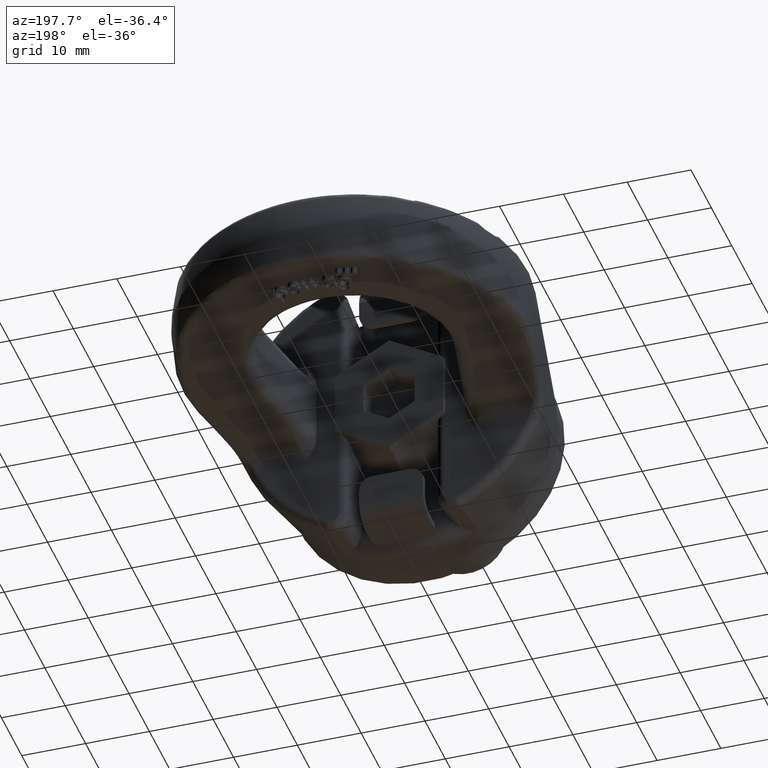
[diagram: clean part render]
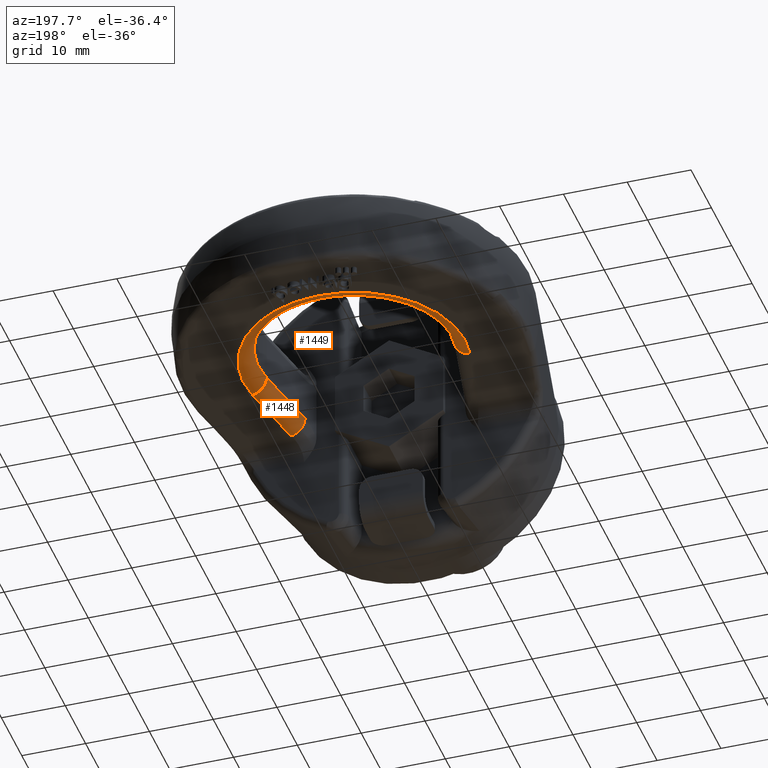
[diagram: same view with one multi-face feature highlighted, each face labeled with its STEP entity id]
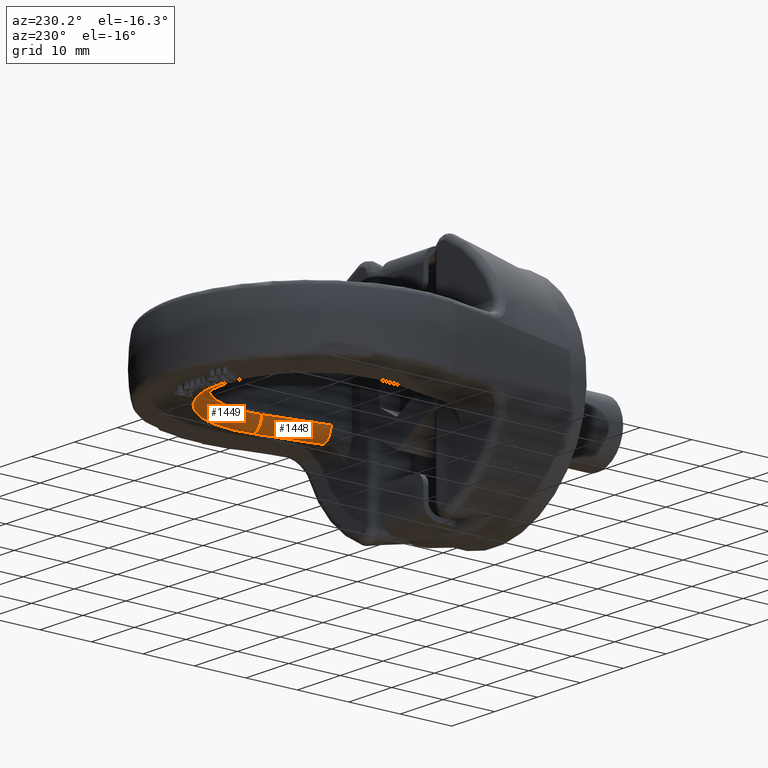
[diagram: same view with one multi-face feature highlighted, each face labeled with its STEP entity id]
A machine part, auxiliary view. The highlighted faces form ONE feature: a constant-radius fillet chain: 2 tangent blend faces with common blend radius 2.4 mm. The faces share edges in the B-rep.
A second angle (auxiliary view) of the same feature is appended — it is thin or edge-on in the first view.
Their STEP definitions:
[1] entity #1448 (Cylinder):
#1072=CYLINDRICAL_SURFACE('',#5282,2.4);
#1216=FACE_OUTER_BOUND('',#1979,.T.);
#1448=ADVANCED_FACE('',(#1216),#1072,.T.);
#1725=CIRCLE('',#5280,2.4);
#1726=CIRCLE('',#5281,2.4);
#1979=EDGE_LOOP('',(#3433,#3434,#3435,#3436));
#2154=LINE('',#6874,#2434);
#2245=LINE('',#8253,#2553);
#2434=VECTOR('',#5526,1.);
#2553=VECTOR('',#5835,1.);
#3433=ORIENTED_EDGE('',*,*,#4658,.F.);
#3434=ORIENTED_EDGE('',*,*,#4405,.F.);
#3435=ORIENTED_EDGE('',*,*,#4659,.T.);
#3436=ORIENTED_EDGE('',*,*,#4607,.F.);
#4003=VERTEX_POINT('',#6856);
#4010=VERTEX_POINT('',#6875);
#4117=VERTEX_POINT('',#8233);
#4124=VERTEX_POINT('',#8252);
#4405=EDGE_CURVE('',#4003,#4010,#2154,.T.);
#4607=EDGE_CURVE('',#4124,#4117,#2245,.T.);
#4658=EDGE_CURVE('',#4010,#4124,#1725,.T.);
#4659=EDGE_CURVE('',#4003,#4117,#1726,.T.);
#5280=AXIS2_PLACEMENT_3D('',#8676,#5915,#5916);
#5281=AXIS2_PLACEMENT_3D('',#8695,#5917,#5918);
#5282=AXIS2_PLACEMENT_3D('',#8696,#5919,#5920);
#5526=DIRECTION('',(-0.19766821154562,-0.980268982547319,-6.17709484262983E-16));
#5835=DIRECTION('',(0.19766821154562,0.980268982547319,6.17709484262983E-16));
#5915=DIRECTION('',(-0.197668211545619,-0.980268982547319,9.53960707018846E-16));
#5916=DIRECTION('',(0.980268982547319,-0.197668211545619,2.34910470705193E-15));
#5917=DIRECTION('',(-0.197668211545619,-0.980268982547319,-4.63118973645096E-16));
#5918=DIRECTION('',(0.980268982547319,-0.197668211545619,2.34910470705193E-15));
#5919=DIRECTION('',(-0.19766821154562,-0.980268982547319,-6.17709484262983E-16));
#5920=DIRECTION('',(-0.980268982547319,0.197668211545619,-2.34910470705193E-15));
#6856=CARTESIAN_POINT('',(14.7040347382098,33.0349768268157,-3.59999999999997));
#6874=CARTESIAN_POINT('',(12.2772188461393,21.,-3.59999999999998));
#6875=CARTESIAN_POINT('',(12.3728808880105,21.4744037077095,-3.59999999999998));
#8233=CARTESIAN_POINT('',(17.0566802963234,32.5605731191062,-5.99999999999997));
#8252=CARTESIAN_POINT('',(14.7255264461241,21.,-5.99999999999997));
#8253=CARTESIAN_POINT('',(17.0566802963234,32.5605731191062,-5.99999999999997));
#8676=CARTESIAN_POINT('',(14.7255264461241,21.,-3.59999999999997));
#8695=CARTESIAN_POINT('',(17.0566802963234,32.5605731191062,-3.59999999999997));
#8696=CARTESIAN_POINT('',(22.0770972089726,57.4576414966899,-3.59999999999995));
[2] entity #1449 (Torus):
#1023=TOROIDAL_SURFACE('',#5284,17.4,2.4);
#1217=FACE_OUTER_BOUND('',#1980,.T.);
#1449=ADVANCED_FACE('',(#1217),#1023,.T.);
#1688=CIRCLE('',#5148,15.);
#1712=CIRCLE('',#5247,17.4);
#1726=CIRCLE('',#5281,2.4);
#1727=CIRCLE('',#5283,2.4);
#1980=EDGE_LOOP('',(#3437,#3438,#3439,#3440));
#3437=ORIENTED_EDGE('',*,*,#4659,.F.);
#3438=ORIENTED_EDGE('',*,*,#4398,.F.);
#3439=ORIENTED_EDGE('',*,*,#4660,.T.);
#3440=ORIENTED_EDGE('',*,*,#4600,.F.);
#4003=VERTEX_POINT('',#6856);
#4006=VERTEX_POINT('',#6861);
#4117=VERTEX_POINT('',#8233);
#4118=VERTEX_POINT('',#8234);
#4398=EDGE_CURVE('',#4006,#4003,#1688,.T.);
#4600=EDGE_CURVE('',#4117,#4118,#1712,.T.);
#4659=EDGE_CURVE('',#4003,#4117,#1726,.T.);
#4660=EDGE_CURVE('',#4006,#4118,#1727,.T.);
#5148=AXIS2_PLACEMENT_3D('',#6862,#5511,#5512);
#5247=AXIS2_PLACEMENT_3D('',#8232,#5828,#5829);
#5281=AXIS2_PLACEMENT_3D('',#8695,#5917,#5918);
#5283=AXIS2_PLACEMENT_3D('',#8697,#5921,#5922);
#5284=AXIS2_PLACEMENT_3D('',#8698,#5923,#5924);
#5511=DIRECTION('',(2.34291072916505E-15,1.5770213417971E-16,-1.));
#5512=DIRECTION('',(-4.1086505480261E-31,1.,1.44560289664734E-16));
#5828=DIRECTION('',(-2.34291072916505E-15,-1.5770213417971E-16,1.));
#5829=DIRECTION('',(-3.54194012760871E-31,1.,1.4954512723938E-16));
#5917=DIRECTION('',(-0.197668211545619,-0.980268982547319,-4.63118973645096E-16));
#5918=DIRECTION('',(0.980268982547319,-0.197668211545619,2.34910470705193E-15));
#5921=DIRECTION('',(-0.197668211545619,0.980268982547319,-4.63118973645098E-16));
#5922=DIRECTION('',(-0.980268982547319,-0.197668211545619,-2.34910470705193E-15));
#5923=DIRECTION('',(-2.34291072916505E-15,-1.5770213417971E-16,1.));
#5924=DIRECTION('',(-3.89076756441866E-31,1.,1.53321519341384E-16));
#6856=CARTESIAN_POINT('',(14.7040347382098,33.0349768268157,-3.59999999999997));
#6861=CARTESIAN_POINT('',(-14.7040347382098,33.0349768268157,-3.60000000000004));
#6862=CARTESIAN_POINT('',(8.43447862499419E-15,36.,-3.60000000000001));
#8232=CARTESIAN_POINT('',(1.40574643749903E-14,36.,-6.00000000000001));
#8233=CARTESIAN_POINT('',(17.0566802963234,32.5605731191062,-5.99999999999997));
#8234=CARTESIAN_POINT('',(-17.0566802963233,32.5605731191062,-6.00000000000005));
#8695=CARTESIAN_POINT('',(17.0566802963234,32.5605731191062,-3.59999999999997));
#8697=CARTESIAN_POINT('',(-17.0566802963233,32.5605731191062,-3.60000000000005));
#8698=CARTESIAN_POINT('',(8.43447862499419E-15,36.,-3.60000000000001));